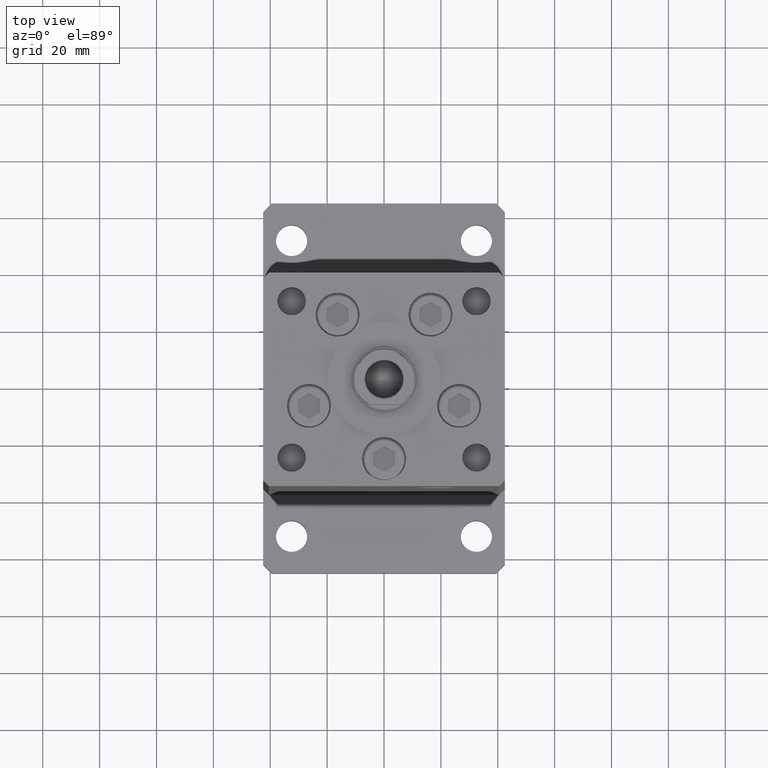
[diagram: clean part render]
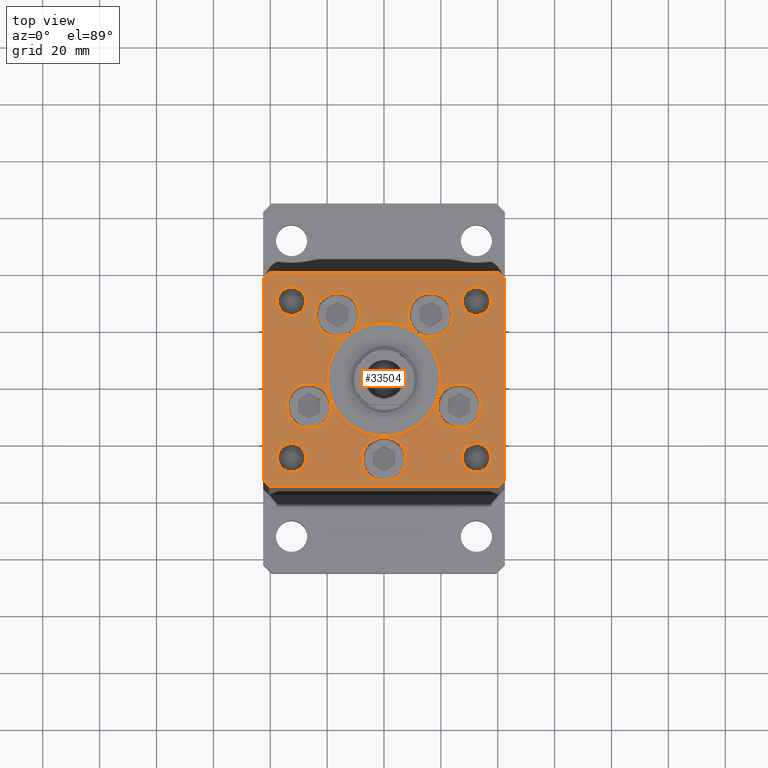
[diagram: same view with one face highlighted and labeled with its STEP entity id]
A machine part, top view. The second image highlights one B-rep face of the part: STEP entity #33504.
In plain terms, the highlighted planar face has unit normal (0, 0, 1).
Its self-contained STEP definition (entity closure, byte-faithful):
#5 = EDGE_CURVE ( 'NONE', #17624, #2078, #24870, .T. ) ;
#192 = FACE_OUTER_BOUND ( 'NONE', #51849, .T. ) ;
#597 = CARTESIAN_POINT ( 'NONE',  ( 0.000000000000000000, -6.938893903907228378E-15, 0.000000000000000000 ) ) ;
#695 = CARTESIAN_POINT ( 'NONE',  ( -27.50000000000000000, -27.50000000000000355, 0.000000000000000000 ) ) ;
#1023 = CIRCLE ( 'NONE', #9574, 7.750000000000000000 ) ;
#1145 = CARTESIAN_POINT ( 'NONE',  ( 26.39865316429777664, -9.333333333333330373, 0.000000000000000000 ) ) ;
#1192 = DIRECTION ( 'NONE',  ( 0.000000000000000000, 0.000000000000000000, 1.000000000000000000 ) ) ;
#1560 = AXIS2_PLACEMENT_3D ( 'NONE', #17118, #33679, #34222 ) ;
#1799 = EDGE_CURVE ( 'NONE', #39677, #39452, #10130, .T. ) ;
#2003 = CARTESIAN_POINT ( 'NONE',  ( 24.07291334290544071, 22.74999999999999289, 0.000000000000000000 ) ) ;
#2074 = CARTESIAN_POINT ( 'NONE',  ( -24.07291334290544071, 22.74999999999999289, 0.000000000000000000 ) ) ;
#2078 = VERTEX_POINT ( 'NONE', #7020 ) ;
#2309 = VERTEX_POINT ( 'NONE', #8883 ) ;
#2730 = CARTESIAN_POINT ( 'NONE',  ( 16.32291334290544071, 22.74999999999999289, 0.000000000000000000 ) ) ;
#2793 = CARTESIAN_POINT ( 'NONE',  ( -32.50000000000000000, 27.50000000000000711, 0.000000000000000000 ) ) ;
#2960 = VECTOR ( 'NONE', #13632, 1000.000000000000000 ) ;
#3728 = VECTOR ( 'NONE', #53748, 1000.000000000000000 ) ;
#3767 = CIRCLE ( 'NONE', #11590, 20.00000000000000000 ) ;
#4034 = LINE ( 'NONE', #28981, #3728 ) ;
#4206 = EDGE_CURVE ( 'NONE', #41643, #14708, #10270, .T. ) ;
#4256 = FACE_BOUND ( 'NONE', #18055, .T. ) ;
#4293 = ORIENTED_EDGE ( 'NONE', *, *, #35413, .F. ) ;
#4311 = DIRECTION ( 'NONE',  ( 0.000000000000000000, 0.000000000000000000, 1.000000000000000000 ) ) ;
#4331 = ORIENTED_EDGE ( 'NONE', *, *, #21110, .F. ) ;
#4342 = ORIENTED_EDGE ( 'NONE', *, *, #22281, .F. ) ;
#4546 = DIRECTION ( 'NONE',  ( 1.000000000000000000, 0.000000000000000000, 0.000000000000000000 ) ) ;
#4547 = ORIENTED_EDGE ( 'NONE', *, *, #50268, .T. ) ;
#4962 = CARTESIAN_POINT ( 'NONE',  ( -16.32291334290544071, 22.74999999999999289, 0.000000000000000000 ) ) ;
#5430 = DIRECTION ( 'NONE',  ( 0.000000000000000000, 0.000000000000000000, 1.000000000000000000 ) ) ;
#5576 = CARTESIAN_POINT ( 'NONE',  ( -37.50000000000000711, -27.50000000000000355, 0.000000000000000000 ) ) ;
#6351 = AXIS2_PLACEMENT_3D ( 'NONE', #32092, #52498, #51951 ) ;
#7020 = CARTESIAN_POINT ( 'NONE',  ( 27.50000000000000355, 27.49999999999999645, 0.000000000000000000 ) ) ;
#7418 = DIRECTION ( 'NONE',  ( 9.773090005503134168E-17, -1.000000000000000000, 0.000000000000000000 ) ) ;
#7485 = ORIENTED_EDGE ( 'NONE', *, *, #50382, .F. ) ;
#7725 = VECTOR ( 'NONE', #37882, 1000.000000000000000 ) ;
#7802 = FACE_BOUND ( 'NONE', #38400, .T. ) ;
#8049 = AXIS2_PLACEMENT_3D ( 'NONE', #47418, #52038, #31635 ) ;
#8103 = EDGE_CURVE ( 'NONE', #45168, #34548, #37299, .T. ) ;
#8588 = FACE_BOUND ( 'NONE', #20284, .T. ) ;
#8616 = DIRECTION ( 'NONE',  ( 0.000000000000000000, 0.000000000000000000, 1.000000000000000000 ) ) ;
#8669 = AXIS2_PLACEMENT_3D ( 'NONE', #30841, #48538, #10222 ) ;
#8676 = ORIENTED_EDGE ( 'NONE', *, *, #43554, .T. ) ;
#8730 = DIRECTION ( 'NONE',  ( 0.000000000000000000, 0.000000000000000000, 1.000000000000000000 ) ) ;
#8739 = EDGE_LOOP ( 'NONE', ( #42262, #49233 ) ) ;
#8848 = DIRECTION ( 'NONE',  ( -0.000000000000000000, 0.000000000000000000, 1.000000000000000000 ) ) ;
#8857 = VECTOR ( 'NONE', #38000, 1000.000000000000000 ) ;
#8883 = CARTESIAN_POINT ( 'NONE',  ( 42.50000000000000711, -35.49999999999992895, 0.000000000000000000 ) ) ;
#8909 = CARTESIAN_POINT ( 'NONE',  ( 37.50000000000000000, -27.50000000000000355, 0.000000000000000000 ) ) ;
#9486 = ORIENTED_EDGE ( 'NONE', *, *, #21909, .T. ) ;
#9574 = AXIS2_PLACEMENT_3D ( 'NONE', #2730, #19270, #43208 ) ;
#9803 = CIRCLE ( 'NONE', #6351, 7.750000000000000000 ) ;
#10130 = LINE ( 'NONE', #43291, #51854 ) ;
#10167 = ORIENTED_EDGE ( 'NONE', *, *, #28942, .T. ) ;
#10168 = CARTESIAN_POINT ( 'NONE',  ( -37.50000000000000711, 27.50000000000000711, 0.000000000000000000 ) ) ;
#10222 = DIRECTION ( 'NONE',  ( 1.000000000000000000, 0.000000000000000000, 0.000000000000000000 ) ) ;
#10270 = CIRCLE ( 'NONE', #35443, 7.750000000000000000 ) ;
#10708 = CARTESIAN_POINT ( 'NONE',  ( -27.50000000000000000, 27.50000000000000711, 0.000000000000000000 ) ) ;
#10839 = EDGE_LOOP ( 'NONE', ( #19004, #34790 ) ) ;
#10920 = CARTESIAN_POINT ( 'NONE',  ( 32.50000000000000000, -27.50000000000000355, 0.000000000000000000 ) ) ;
#11316 = ORIENTED_EDGE ( 'NONE', *, *, #16281, .F. ) ;
#11559 = CIRCLE ( 'NONE', #37548, 7.750000000000000000 ) ;
#11590 = AXIS2_PLACEMENT_3D ( 'NONE', #597, #8730, #17420 ) ;
#11686 = ORIENTED_EDGE ( 'NONE', *, *, #36290, .F. ) ;
#11778 = EDGE_CURVE ( 'NONE', #15035, #44067, #34779, .T. ) ;
#11865 = CARTESIAN_POINT ( 'NONE',  ( -26.39865316429777664, -9.333333333333330373, 0.000000000000000000 ) ) ;
#12030 = VERTEX_POINT ( 'NONE', #24075 ) ;
#12135 = DIRECTION ( 'NONE',  ( 0.000000000000000000, 0.000000000000000000, 1.000000000000000000 ) ) ;
#12156 = ORIENTED_EDGE ( 'NONE', *, *, #43100, .T. ) ;
#12420 = CARTESIAN_POINT ( 'NONE',  ( 40.50000000000001421, -37.49999999999992184, 0.000000000000000000 ) ) ;
#12438 = EDGE_CURVE ( 'NONE', #14708, #41643, #16597, .T. ) ;
#12865 = VECTOR ( 'NONE', #46565, 1000.000000000000000 ) ;
#13093 = AXIS2_PLACEMENT_3D ( 'NONE', #38542, #37990, #21940 ) ;
#13196 = FACE_BOUND ( 'NONE', #40100, .T. ) ;
#13632 = DIRECTION ( 'NONE',  ( 0.7071067811865487940, -0.7071067811865463515, 0.000000000000000000 ) ) ;
#14427 = EDGE_LOOP ( 'NONE', ( #4293, #11316 ) ) ;
#14691 = CARTESIAN_POINT ( 'NONE',  ( 32.50000000000000000, -27.50000000000000355, 0.000000000000000000 ) ) ;
#14708 = VERTEX_POINT ( 'NONE', #44954 ) ;
#14758 = AXIS2_PLACEMENT_3D ( 'NONE', #4962, #1192, #51692 ) ;
#15005 = CIRCLE ( 'NONE', #8049, 20.00000000000000000 ) ;
#15035 = VERTEX_POINT ( 'NONE', #30146 ) ;
#15157 = CARTESIAN_POINT ( 'NONE',  ( -42.50000000000000711, 35.50000000000000000, 0.000000000000000000 ) ) ;
#15597 = VERTEX_POINT ( 'NONE', #24446 ) ;
#15635 = ORIENTED_EDGE ( 'NONE', *, *, #48493, .F. ) ;
#15765 = DIRECTION ( 'NONE',  ( -0.000000000000000000, -0.000000000000000000, -1.000000000000000000 ) ) ;
#15983 = LINE ( 'NONE', #12420, #17194 ) ;
#16123 = CARTESIAN_POINT ( 'NONE',  ( 18.64865316429777664, -9.333333333333328596, 0.000000000000000000 ) ) ;
#16281 = EDGE_CURVE ( 'NONE', #36671, #15597, #18403, .T. ) ;
#16539 = CARTESIAN_POINT ( 'NONE',  ( 32.50000000000000000, 27.49999999999999645, 0.000000000000000000 ) ) ;
#16597 = CIRCLE ( 'NONE', #29547, 7.750000000000000000 ) ;
#16651 = CARTESIAN_POINT ( 'NONE',  ( -34.14865316429777664, -9.333333333333328596, 0.000000000000000000 ) ) ;
#16670 = EDGE_CURVE ( 'NONE', #29143, #25261, #41832, .T. ) ;
#16698 = ORIENTED_EDGE ( 'NONE', *, *, #1799, .T. ) ;
#16754 = PLANE ( 'NONE',  #38066 ) ;
#16942 = ORIENTED_EDGE ( 'NONE', *, *, #35960, .F. ) ;
#17001 = ORIENTED_EDGE ( 'NONE', *, *, #8103, .F. ) ;
#17092 = CARTESIAN_POINT ( 'NONE',  ( 42.50000000000001421, 35.50000000000002132, 0.000000000000000000 ) ) ;
#17118 = CARTESIAN_POINT ( 'NONE',  ( -26.39865316429777664, -9.333333333333330373, 0.000000000000000000 ) ) ;
#17194 = VECTOR ( 'NONE', #49118, 1000.000000000000114 ) ;
#17420 = DIRECTION ( 'NONE',  ( 1.000000000000000000, 0.000000000000000000, 0.000000000000000000 ) ) ;
#17457 = CARTESIAN_POINT ( 'NONE',  ( 26.39865316429777664, -9.333333333333330373, 0.000000000000000000 ) ) ;
#17594 = AXIS2_PLACEMENT_3D ( 'NONE', #10920, #27459, #30467 ) ;
#17612 = ORIENTED_EDGE ( 'NONE', *, *, #48890, .F. ) ;
#17624 = VERTEX_POINT ( 'NONE', #35048 ) ;
#17790 = EDGE_CURVE ( 'NONE', #47246, #35983, #15005, .T. ) ;
#18055 = EDGE_LOOP ( 'NONE', ( #39897, #9486 ) ) ;
#18403 = CIRCLE ( 'NONE', #47065, 7.750000000000000000 ) ;
#18601 = EDGE_LOOP ( 'NONE', ( #4342, #15635 ) ) ;
#19004 = ORIENTED_EDGE ( 'NONE', *, *, #12438, .F. ) ;
#19270 = DIRECTION ( 'NONE',  ( 0.000000000000000000, 0.000000000000000000, 1.000000000000000000 ) ) ;
#19335 = DIRECTION ( 'NONE',  ( -1.000000000000000000, 0.000000000000000000, 0.000000000000000000 ) ) ;
#19540 = DIRECTION ( 'NONE',  ( -0.000000000000000000, -0.000000000000000000, -1.000000000000000000 ) ) ;
#19590 = EDGE_CURVE ( 'NONE', #34451, #2309, #15983, .T. ) ;
#20284 = EDGE_LOOP ( 'NONE', ( #17001, #17612 ) ) ;
#20431 = AXIS2_PLACEMENT_3D ( 'NONE', #2793, #23391, #19335 ) ;
#20435 = CARTESIAN_POINT ( 'NONE',  ( -7.750000000000000000, -28.00000000000000000, 0.000000000000000000 ) ) ;
#20578 = CARTESIAN_POINT ( 'NONE',  ( -16.32291334290544071, 22.74999999999999289, 0.000000000000000000 ) ) ;
#21064 = FACE_BOUND ( 'NONE', #8739, .T. ) ;
#21110 = EDGE_CURVE ( 'NONE', #28278, #12030, #43200, .T. ) ;
#21855 = AXIS2_PLACEMENT_3D ( 'NONE', #33362, #15765, #49941 ) ;
#21909 = EDGE_CURVE ( 'NONE', #25261, #29143, #24766, .T. ) ;
#21940 = DIRECTION ( 'NONE',  ( 1.000000000000000000, 0.000000000000000000, 0.000000000000000000 ) ) ;
#22269 = DIRECTION ( 'NONE',  ( 0.000000000000000000, 0.000000000000000000, 1.000000000000000000 ) ) ;
#22281 = EDGE_CURVE ( 'NONE', #38661, #30144, #1023, .T. ) ;
#22372 = DIRECTION ( 'NONE',  ( 0.000000000000000000, 0.000000000000000000, 1.000000000000000000 ) ) ;
#22618 = EDGE_CURVE ( 'NONE', #12030, #28278, #39026, .T. ) ;
#23391 = DIRECTION ( 'NONE',  ( -0.000000000000000000, -0.000000000000000000, -1.000000000000000000 ) ) ;
#24075 = CARTESIAN_POINT ( 'NONE',  ( -18.64865316429777664, -9.333333333333330373, 0.000000000000000000 ) ) ;
#24446 = CARTESIAN_POINT ( 'NONE',  ( 7.750000000000000000, -28.00000000000000000, 0.000000000000000000 ) ) ;
#24766 = CIRCLE ( 'NONE', #20431, 5.000000000000004441 ) ;
#24861 = FACE_BOUND ( 'NONE', #14427, .T. ) ;
#24870 = CIRCLE ( 'NONE', #31827, 4.999999999999997335 ) ;
#25261 = VERTEX_POINT ( 'NONE', #10168 ) ;
#25392 = DIRECTION ( 'NONE',  ( 1.000000000000000000, 0.000000000000000000, 0.000000000000000000 ) ) ;
#25483 = LINE ( 'NONE', #17092, #8857 ) ;
#26150 = CARTESIAN_POINT ( 'NONE',  ( -8.572913342905440715, 22.74999999999999289, 0.000000000000000000 ) ) ;
#26674 = DIRECTION ( 'NONE',  ( -1.000000000000000000, -4.283267841918041508E-16, 0.000000000000000000 ) ) ;
#26798 = AXIS2_PLACEMENT_3D ( 'NONE', #42853, #8616, #4546 ) ;
#26835 = AXIS2_PLACEMENT_3D ( 'NONE', #42648, #5430, #33924 ) ;
#26953 = CIRCLE ( 'NONE', #13093, 4.999999999999997335 ) ;
#27111 = ORIENTED_EDGE ( 'NONE', *, *, #22618, .F. ) ;
#27328 = EDGE_CURVE ( 'NONE', #43098, #34451, #43042, .T. ) ;
#27459 = DIRECTION ( 'NONE',  ( -0.000000000000000000, -0.000000000000000000, -1.000000000000000000 ) ) ;
#27593 = ORIENTED_EDGE ( 'NONE', *, *, #19590, .T. ) ;
#28278 = VERTEX_POINT ( 'NONE', #16651 ) ;
#28672 = DIRECTION ( 'NONE',  ( 1.000000000000000000, 0.000000000000000000, 0.000000000000000000 ) ) ;
#28942 = EDGE_CURVE ( 'NONE', #39452, #30653, #37357, .T. ) ;
#28981 = CARTESIAN_POINT ( 'NONE',  ( 42.50000000000000711, -35.49999999999992895, 0.000000000000000000 ) ) ;
#29079 = VERTEX_POINT ( 'NONE', #5576 ) ;
#29143 = VERTEX_POINT ( 'NONE', #10708 ) ;
#29465 = CIRCLE ( 'NONE', #26835, 5.000000000000000888 ) ;
#29547 = AXIS2_PLACEMENT_3D ( 'NONE', #1145, #22269, #46220 ) ;
#29584 = VERTEX_POINT ( 'NONE', #44666 ) ;
#29704 = CARTESIAN_POINT ( 'NONE',  ( -40.50000000000000000, 37.49999999999997158, 0.000000000000000000 ) ) ;
#29953 = CARTESIAN_POINT ( 'NONE',  ( -40.50000000000000711, -37.50000000000003553, 0.000000000000000000 ) ) ;
#30144 = VERTEX_POINT ( 'NONE', #47007 ) ;
#30146 = CARTESIAN_POINT ( 'NONE',  ( 27.50000000000000355, -27.50000000000000355, 0.000000000000000000 ) ) ;
#30467 = DIRECTION ( 'NONE',  ( -1.000000000000000000, 0.000000000000000000, 0.000000000000000000 ) ) ;
#30653 = VERTEX_POINT ( 'NONE', #15157 ) ;
#30766 = VERTEX_POINT ( 'NONE', #695 ) ;
#30841 = CARTESIAN_POINT ( 'NONE',  ( -32.50000000000000000, -27.50000000000000355, 0.000000000000000000 ) ) ;
#31161 = AXIS2_PLACEMENT_3D ( 'NONE', #11865, #12135, #28672 ) ;
#31613 = DIRECTION ( 'NONE',  ( 1.000000000000000000, 0.000000000000000000, 0.000000000000000000 ) ) ;
#31635 = DIRECTION ( 'NONE',  ( 1.000000000000000000, 0.000000000000000000, 0.000000000000000000 ) ) ;
#31827 = AXIS2_PLACEMENT_3D ( 'NONE', #16539, #48905, #37174 ) ;
#32092 = CARTESIAN_POINT ( 'NONE',  ( 16.32291334290544071, 22.74999999999999289, 0.000000000000000000 ) ) ;
#32401 = VECTOR ( 'NONE', #7418, 1000.000000000000000 ) ;
#33037 = FACE_BOUND ( 'NONE', #43446, .T. ) ;
#33362 = CARTESIAN_POINT ( 'NONE',  ( -32.50000000000000000, 27.50000000000000711, 0.000000000000000000 ) ) ;
#33504 = ADVANCED_FACE ( 'NONE', ( #33037, #8588, #50418, #33830, #24861, #13196, #4256, #21064, #7802, #192, #37387 ), #16754, .T. ) ;
#33679 = DIRECTION ( 'NONE',  ( 0.000000000000000000, 0.000000000000000000, 1.000000000000000000 ) ) ;
#33830 = FACE_BOUND ( 'NONE', #10839, .T. ) ;
#33914 = AXIS2_PLACEMENT_3D ( 'NONE', #14691, #19540, #36128 ) ;
#33924 = DIRECTION ( 'NONE',  ( 1.000000000000000000, 0.000000000000000000, 0.000000000000000000 ) ) ;
#34013 = DIRECTION ( 'NONE',  ( 0.000000000000000000, 0.000000000000000000, 1.000000000000000000 ) ) ;
#34222 = DIRECTION ( 'NONE',  ( 1.000000000000000000, 0.000000000000000000, 0.000000000000000000 ) ) ;
#34451 = VERTEX_POINT ( 'NONE', #37129 ) ;
#34453 = ORIENTED_EDGE ( 'NONE', *, *, #17790, .F. ) ;
#34548 = VERTEX_POINT ( 'NONE', #2074 ) ;
#34779 = CIRCLE ( 'NONE', #33914, 4.999999999999997335 ) ;
#34790 = ORIENTED_EDGE ( 'NONE', *, *, #4206, .F. ) ;
#35048 = CARTESIAN_POINT ( 'NONE',  ( 37.50000000000000000, 27.49999999999999645, 0.000000000000000000 ) ) ;
#35413 = EDGE_CURVE ( 'NONE', #15597, #36671, #50244, .T. ) ;
#35443 = AXIS2_PLACEMENT_3D ( 'NONE', #17457, #34013, #50609 ) ;
#35960 = EDGE_CURVE ( 'NONE', #30766, #29079, #29465, .T. ) ;
#35983 = VERTEX_POINT ( 'NONE', #39626 ) ;
#36128 = DIRECTION ( 'NONE',  ( -1.000000000000000000, 0.000000000000000000, 0.000000000000000000 ) ) ;
#36290 = EDGE_CURVE ( 'NONE', #29079, #30766, #51190, .T. ) ;
#36671 = VERTEX_POINT ( 'NONE', #20435 ) ;
#37129 = CARTESIAN_POINT ( 'NONE',  ( 40.50000000000001421, -37.49999999999992184, 0.000000000000000000 ) ) ;
#37174 = DIRECTION ( 'NONE',  ( 1.000000000000000000, 0.000000000000000000, 0.000000000000000000 ) ) ;
#37176 = DIRECTION ( 'NONE',  ( 1.000000000000000000, 0.000000000000000000, 0.000000000000000000 ) ) ;
#37299 = CIRCLE ( 'NONE', #14758, 7.750000000000000000 ) ;
#37352 = CARTESIAN_POINT ( 'NONE',  ( -20.00000000000000000, -6.938893903907228378E-15, 0.000000000000000000 ) ) ;
#37357 = LINE ( 'NONE', #29704, #7725 ) ;
#37387 = FACE_BOUND ( 'NONE', #42283, .T. ) ;
#37548 = AXIS2_PLACEMENT_3D ( 'NONE', #20578, #4311, #37176 ) ;
#37653 = CARTESIAN_POINT ( 'NONE',  ( 0.000000000000000000, 0.000000000000000000, 0.000000000000000000 ) ) ;
#37882 = DIRECTION ( 'NONE',  ( -0.7071067811865536790, -0.7071067811865414665, 0.000000000000000000 ) ) ;
#37990 = DIRECTION ( 'NONE',  ( 0.000000000000000000, 0.000000000000000000, 1.000000000000000000 ) ) ;
#38000 = DIRECTION ( 'NONE',  ( -0.7071067811865524577, 0.7071067811865426878, 0.000000000000000000 ) ) ;
#38066 = AXIS2_PLACEMENT_3D ( 'NONE', #37653, #8848, #25392 ) ;
#38400 = EDGE_LOOP ( 'NONE', ( #16942, #11686 ) ) ;
#38542 = CARTESIAN_POINT ( 'NONE',  ( 32.50000000000000000, 27.49999999999999645, 0.000000000000000000 ) ) ;
#38661 = VERTEX_POINT ( 'NONE', #2003 ) ;
#38799 = ORIENTED_EDGE ( 'NONE', *, *, #45969, .T. ) ;
#38873 = EDGE_CURVE ( 'NONE', #2078, #17624, #26953, .T. ) ;
#39026 = CIRCLE ( 'NONE', #31161, 7.750000000000000000 ) ;
#39452 = VERTEX_POINT ( 'NONE', #48246 ) ;
#39626 = CARTESIAN_POINT ( 'NONE',  ( 20.00000000000000000, -4.489600305612522259E-15, 0.000000000000000000 ) ) ;
#39677 = VERTEX_POINT ( 'NONE', #47905 ) ;
#39897 = ORIENTED_EDGE ( 'NONE', *, *, #16670, .T. ) ;
#40100 = EDGE_LOOP ( 'NONE', ( #27111, #4331 ) ) ;
#40143 = CIRCLE ( 'NONE', #17594, 4.999999999999997335 ) ;
#41260 = CARTESIAN_POINT ( 'NONE',  ( -40.50000000000000711, -37.50000000000003553, 0.000000000000000000 ) ) ;
#41643 = VERTEX_POINT ( 'NONE', #16123 ) ;
#41832 = CIRCLE ( 'NONE', #21855, 5.000000000000004441 ) ;
#41961 = ORIENTED_EDGE ( 'NONE', *, *, #11778, .T. ) ;
#42262 = ORIENTED_EDGE ( 'NONE', *, *, #5, .F. ) ;
#42283 = EDGE_LOOP ( 'NONE', ( #8676, #41961 ) ) ;
#42648 = CARTESIAN_POINT ( 'NONE',  ( -32.50000000000000000, -27.50000000000000355, 0.000000000000000000 ) ) ;
#42853 = CARTESIAN_POINT ( 'NONE',  ( 0.000000000000000000, -28.00000000000000000, 0.000000000000000000 ) ) ;
#43042 = LINE ( 'NONE', #29953, #12865 ) ;
#43098 = VERTEX_POINT ( 'NONE', #41260 ) ;
#43100 = EDGE_CURVE ( 'NONE', #2309, #48253, #4034, .T. ) ;
#43200 = CIRCLE ( 'NONE', #1560, 7.750000000000000000 ) ;
#43208 = DIRECTION ( 'NONE',  ( 1.000000000000000000, 0.000000000000000000, 0.000000000000000000 ) ) ;
#43291 = CARTESIAN_POINT ( 'NONE',  ( 40.50000000000000711, 37.50000000000000711, 0.000000000000000000 ) ) ;
#43446 = EDGE_LOOP ( 'NONE', ( #34453, #7485 ) ) ;
#43554 = EDGE_CURVE ( 'NONE', #44067, #15035, #40143, .T. ) ;
#44067 = VERTEX_POINT ( 'NONE', #8909 ) ;
#44666 = CARTESIAN_POINT ( 'NONE',  ( -42.50000000000000000, -35.50000000000004263, 0.000000000000000000 ) ) ;
#44954 = CARTESIAN_POINT ( 'NONE',  ( 34.14865316429777664, -9.333333333333330373, 0.000000000000000000 ) ) ;
#45157 = CARTESIAN_POINT ( 'NONE',  ( -42.50000000000000711, 35.50000000000000000, 0.000000000000000000 ) ) ;
#45168 = VERTEX_POINT ( 'NONE', #26150 ) ;
#45969 = EDGE_CURVE ( 'NONE', #48253, #39677, #25483, .T. ) ;
#46220 = DIRECTION ( 'NONE',  ( 1.000000000000000000, 0.000000000000000000, 0.000000000000000000 ) ) ;
#46565 = DIRECTION ( 'NONE',  ( 1.000000000000000000, 1.370645709413773283E-15, 0.000000000000000000 ) ) ;
#47007 = CARTESIAN_POINT ( 'NONE',  ( 8.572913342905442491, 22.74999999999999289, 0.000000000000000000 ) ) ;
#47065 = AXIS2_PLACEMENT_3D ( 'NONE', #52018, #22372, #31613 ) ;
#47246 = VERTEX_POINT ( 'NONE', #37352 ) ;
#47418 = CARTESIAN_POINT ( 'NONE',  ( 0.000000000000000000, -6.938893903907228378E-15, 0.000000000000000000 ) ) ;
#47579 = LINE ( 'NONE', #47849, #2960 ) ;
#47849 = CARTESIAN_POINT ( 'NONE',  ( -42.50000000000000000, -35.50000000000004263, 0.000000000000000000 ) ) ;
#47905 = CARTESIAN_POINT ( 'NONE',  ( 40.50000000000000711, 37.50000000000000711, 0.000000000000000000 ) ) ;
#48246 = CARTESIAN_POINT ( 'NONE',  ( -40.50000000000000000, 37.49999999999997158, 0.000000000000000000 ) ) ;
#48253 = VERTEX_POINT ( 'NONE', #52259 ) ;
#48493 = EDGE_CURVE ( 'NONE', #30144, #38661, #9803, .T. ) ;
#48538 = DIRECTION ( 'NONE',  ( 0.000000000000000000, 0.000000000000000000, 1.000000000000000000 ) ) ;
#48784 = ORIENTED_EDGE ( 'NONE', *, *, #51447, .T. ) ;
#48890 = EDGE_CURVE ( 'NONE', #34548, #45168, #11559, .T. ) ;
#48905 = DIRECTION ( 'NONE',  ( 0.000000000000000000, 0.000000000000000000, 1.000000000000000000 ) ) ;
#49118 = DIRECTION ( 'NONE',  ( 0.7071067811865474617, 0.7071067811865474617, 0.000000000000000000 ) ) ;
#49233 = ORIENTED_EDGE ( 'NONE', *, *, #38873, .F. ) ;
#49941 = DIRECTION ( 'NONE',  ( -1.000000000000000000, 0.000000000000000000, 0.000000000000000000 ) ) ;
#50244 = CIRCLE ( 'NONE', #26798, 7.750000000000000000 ) ;
#50268 = EDGE_CURVE ( 'NONE', #30653, #29584, #53574, .T. ) ;
#50382 = EDGE_CURVE ( 'NONE', #35983, #47246, #3767, .T. ) ;
#50418 = FACE_BOUND ( 'NONE', #18601, .T. ) ;
#50609 = DIRECTION ( 'NONE',  ( 1.000000000000000000, 0.000000000000000000, 0.000000000000000000 ) ) ;
#51190 = CIRCLE ( 'NONE', #8669, 5.000000000000000888 ) ;
#51447 = EDGE_CURVE ( 'NONE', #29584, #43098, #47579, .T. ) ;
#51482 = ORIENTED_EDGE ( 'NONE', *, *, #27328, .T. ) ;
#51692 = DIRECTION ( 'NONE',  ( 1.000000000000000000, 0.000000000000000000, 0.000000000000000000 ) ) ;
#51849 = EDGE_LOOP ( 'NONE', ( #48784, #51482, #27593, #12156, #38799, #16698, #10167, #4547 ) ) ;
#51854 = VECTOR ( 'NONE', #26674, 1000.000000000000000 ) ;
#51951 = DIRECTION ( 'NONE',  ( 1.000000000000000000, 0.000000000000000000, 0.000000000000000000 ) ) ;
#52018 = CARTESIAN_POINT ( 'NONE',  ( 0.000000000000000000, -28.00000000000000000, 0.000000000000000000 ) ) ;
#52038 = DIRECTION ( 'NONE',  ( 0.000000000000000000, 0.000000000000000000, 1.000000000000000000 ) ) ;
#52259 = CARTESIAN_POINT ( 'NONE',  ( 42.50000000000001421, 35.50000000000002132, 0.000000000000000000 ) ) ;
#52498 = DIRECTION ( 'NONE',  ( 0.000000000000000000, 0.000000000000000000, 1.000000000000000000 ) ) ;
#53574 = LINE ( 'NONE', #45157, #32401 ) ;
#53748 = DIRECTION ( 'NONE',  ( 9.773090005503145261E-17, 1.000000000000000000, 0.000000000000000000 ) ) ;